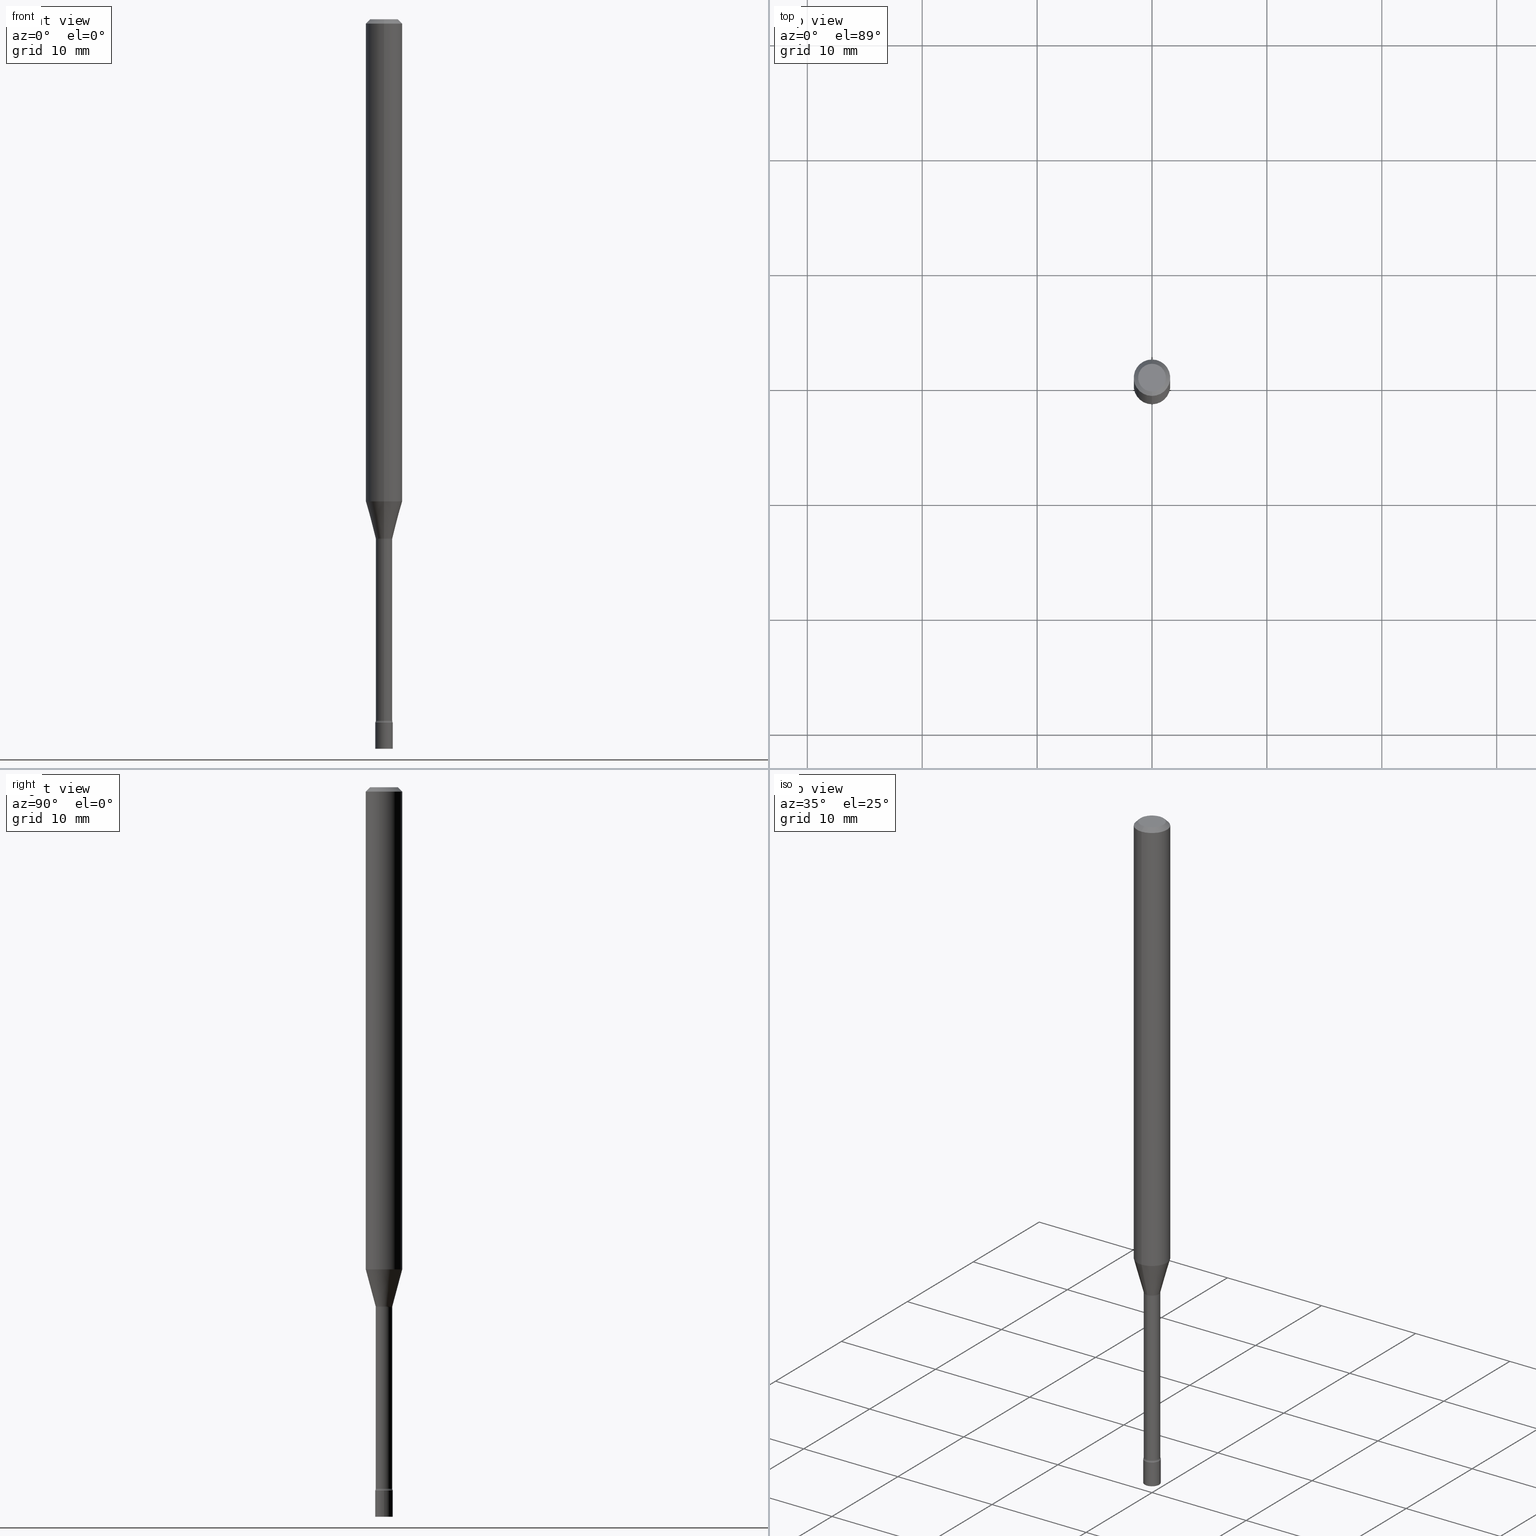
[diagram: canonical four-view strip — front | top / right | iso, engineering-drawing reading convention]
A machine part, canonical four-view strip (front | top / right | iso — engineering-drawing reading convention). The complete STEP part file that produces these views, byte-faithful:
ISO-10303-21;
HEADER;
FILE_DESCRIPTION (( 'STEP AP203' ),
    '1' );
FILE_NAME ('09679.STEP',
    '2024-03-09T00:43:48',
    ( '' ),
    ( '' ),
    'SwSTEP 2.0',
    'SolidWorks 2023',
    '' );
FILE_SCHEMA (( 'CONFIG_CONTROL_DESIGN' ));
ENDSEC;

DATA;
#1 = FACE_OUTER_BOUND ( 'NONE', #424, .T. ) ;
#2 = ORIENTED_EDGE ( 'NONE', *, *, #239, .T. ) ;
#3 = APPLICATION_CONTEXT ( 'configuration controlled 3d designs of mechanical parts and assemblies' ) ;
#4 = CARTESIAN_POINT ( 'NONE',  ( 4.357819867251612276E-29, -6.221651362429354140E-15, -1.781974787463811216 ) ) ;
#5 = CARTESIAN_POINT ( 'NONE',  ( 4.440892098501027495E-16, 0.06249999999999421296, -1.651990657300388188 ) ) ;
#6 = VERTEX_POINT ( 'NONE', #228 ) ;
#7 = CARTESIAN_POINT ( 'NONE',  ( 3.668250441512030208E-31, -5.237154369016894363E-17, -0.01500000000000003067 ) ) ;
#8 = VECTOR ( 'NONE', #170, 39.37007874015748854 ) ;
#9 = APPROVAL_PERSON_ORGANIZATION ( #303, #55, #172 ) ;
#10 = ADVANCED_FACE ( 'NONE', ( #381 ), #83, .T. ) ;
#11 = EDGE_LOOP ( 'NONE', ( #56, #251, #222, #380 ) ) ;
#12 = DIRECTION ( 'NONE',  ( 1.000000000000000000, -7.105427357601001070E-15, 4.926314956314159995E-29 ) ) ;
#13 = ORIENTED_EDGE ( 'NONE', *, *, #44, .T. ) ;
#14 = DIRECTION ( 'NONE',  ( -2.445500294341348638E-29, 3.491436246011255464E-15, 1.000000000000000000 ) ) ;
#15 = ORIENTED_EDGE ( 'NONE', *, *, #446, .T. ) ;
#16 = CARTESIAN_POINT ( 'NONE',  ( 0.000000000000000000, 0.000000000000000000, 0.000000000000000000 ) ) ;
#17 = ORIENTED_EDGE ( 'NONE', *, *, #211, .F. ) ;
#18 = CIRCLE ( 'NONE', #420, 0.01499999999999997689 ) ;
#19 = CIRCLE ( 'NONE', #288, 0.02819999999999999590 ) ;
#20 = CARTESIAN_POINT ( 'NONE',  ( 0.000000000000000000, 0.000000000000000000, 0.000000000000000000 ) ) ;
#21 = EDGE_CURVE ( 'NONE', #6, #449, #18, .T. ) ;
#22 = ORIENTED_EDGE ( 'NONE', *, *, #396, .F. ) ;
#23 = CARTESIAN_POINT ( 'NONE',  ( 4.348325736486921487E-29, -6.208096609500918334E-15, -1.778092501787273294 ) ) ;
#24 =( CONVERSION_BASED_UNIT ( 'INCH', #31 ) LENGTH_UNIT ( ) NAMED_UNIT ( #116 ) );
#25 = EDGE_LOOP ( 'NONE', ( #185, #451 ) ) ;
#26 = CIRCLE ( 'NONE', #399, 0.02999999999999999889 ) ;
#27 = AXIS2_PLACEMENT_3D ( 'NONE', #443, #110, #324 ) ;
#28 = EDGE_CURVE ( 'NONE', #334, #418, #257, .T. ) ;
#29 = DATE_TIME_ROLE ( 'creation_date' ) ;
#30 = CARTESIAN_POINT ( 'NONE',  ( 3.069544618484225597E-16, 0.04319999999999168255, -2.402875394747777893 ) ) ;
#31 = LENGTH_MEASURE_WITH_UNIT ( LENGTH_MEASURE( 0.02539999999999999897 ), #272 );
#32 = CARTESIAN_POINT ( 'NONE',  ( 4.364351673553919652E-16, 0.06249999999999995143, -0.01500000000000024751 ) ) ;
#33 = DATE_AND_TIME ( #388, #247 ) ;
#34 = PLANE ( 'NONE',  #206 ) ;
#35 = ADVANCED_FACE ( 'NONE', ( #397 ), #167, .F. ) ;
#36 = AXIS2_PLACEMENT_3D ( 'NONE', #23, #194, #157 ) ;
#37 = LOCAL_TIME ( 19, 43, 48.00000000000000000, #244 ) ;
#38 = DIRECTION ( 'NONE',  ( 2.445500294341348638E-29, -3.491436246011255464E-15, -1.000000000000000000 ) ) ;
#39 = CARTESIAN_POINT ( 'NONE',  ( -0.02999999999999999889, -8.358423866131893065E-15, -2.500000000000000000 ) ) ;
#40 = CC_DESIGN_DATE_AND_TIME_ASSIGNMENT ( #161, #29, ( #99 ) ) ;
#41 = CARTESIAN_POINT ( 'NONE',  ( 2.094888803306469144E-16, 0.02999999999999158548, -2.410000000000000142 ) ) ;
#42 = CARTESIAN_POINT ( 'NONE',  ( 0.000000000000000000, 0.000000000000000000, 0.000000000000000000 ) ) ;
#43 = DIRECTION ( 'NONE',  ( -2.445500294341348638E-29, 3.491436246011255464E-15, 1.000000000000000000 ) ) ;
#44 = EDGE_CURVE ( 'NONE', #111, #492, #131, .T. ) ;
#45 = CIRCLE ( 'NONE', #72, 0.02871111260566398468 ) ;
#46 = DIRECTION ( 'NONE',  ( -6.982962677686262766E-15, -1.000000000000000000, 0.000000000000000000 ) ) ;
#47 = DIRECTION ( 'NONE',  ( -2.445468806185136597E-29, 3.491481338843145583E-15, 1.000000000000000000 ) ) ;
#48 = DIRECTION ( 'NONE',  ( 2.445500294341348357E-29, -3.491436246011255464E-15, -1.000000000000000000 ) ) ;
#49 = APPLICATION_CONTEXT ( 'configuration controlled 3d designs of mechanical parts and assemblies' ) ;
#50 = DIRECTION ( 'NONE',  ( 1.000000000000000000, -6.982962677686267499E-15, 4.876176775795936353E-29 ) ) ;
#51 = ORIENTED_EDGE ( 'NONE', *, *, #345, .T. ) ;
#52 = ORIENTED_EDGE ( 'NONE', *, *, #428, .F. ) ;
#53 = AXIS2_PLACEMENT_3D ( 'NONE', #126, #352, #427 ) ;
#54 = AXIS2_PLACEMENT_3D ( 'NONE', #42, #398, #75 ) ;
#55 = APPROVAL ( #463, 'UNSPECIFIED' ) ;
#56 = ORIENTED_EDGE ( 'NONE', *, *, #44, .F. ) ;
#57 = PLANE ( 'NONE',  #426 ) ;
#58 = ORIENTED_EDGE ( 'NONE', *, *, #446, .F. ) ;
#59 = CARTESIAN_POINT ( 'NONE',  ( 0.000000000000000000, 0.000000000000000000, 0.000000000000000000 ) ) ;
#60 = EDGE_LOOP ( 'NONE', ( #366, #262 ) ) ;
#61 = ADVANCED_FACE ( 'NONE', ( #204 ), #304, .F. ) ;
#62 = CYLINDRICAL_SURFACE ( 'NONE', #378, 0.02999999999999999889 ) ;
#63 = CONICAL_SURFACE ( 'NONE', #231, 0.02871111260566398468, 0.2617993877991500740 ) ;
#64 = AXIS2_PLACEMENT_3D ( 'NONE', #114, #468, #383 ) ;
#65 = DIRECTION ( 'NONE',  ( -2.445500294341348638E-29, 3.491436246011255464E-15, 1.000000000000000000 ) ) ;
#66 = CC_DESIGN_DATE_AND_TIME_ASSIGNMENT ( #125, #155, ( #305 ) ) ;
#67 = EDGE_LOOP ( 'NONE', ( #287, #331, #109, #115 ) ) ;
#68 = ORIENTED_EDGE ( 'NONE', *, *, #428, .T. ) ;
#69 = COORDINATED_UNIVERSAL_TIME_OFFSET ( 5, 0, .BEHIND. ) ;
#70 = EDGE_CURVE ( 'NONE', #469, #492, #266, .T. ) ;
#71 = EDGE_LOOP ( 'NONE', ( #504, #97, #362, #500 ) ) ;
#72 = AXIS2_PLACEMENT_3D ( 'NONE', #238, #354, #387 ) ;
#73 = VECTOR ( 'NONE', #171, 39.37007874015748143 ) ;
#74 = DIRECTION ( 'NONE',  ( 1.000000000000000000, -6.982962677686268288E-15, 0.000000000000000000 ) ) ;
#75 = DIRECTION ( 'NONE',  ( -6.982962677686265922E-15, -1.000000000000000000, 3.491436246011255464E-15 ) ) ;
#76 =( NAMED_UNIT ( * ) PLANE_ANGLE_UNIT ( ) SI_UNIT ( $, .RADIAN. ) );
#77 = CARTESIAN_POINT ( 'NONE',  ( 4.357819867251612276E-29, -6.221651362429354140E-15, -1.781974787463811216 ) ) ;
#78 = MANIFOLD_SOLID_BREP ( 'Body-Move/Copy2[1]', #112 ) ;
#79 = PERSON_AND_ORGANIZATION_ROLE ( 'creator' ) ;
#80 = EDGE_CURVE ( 'NONE', #466, #140, #351, .T. ) ;
#81 = DIRECTION ( 'NONE',  ( -6.982962677686265922E-15, -1.000000000000000000, 3.483106191921935554E-15 ) ) ;
#82 = AXIS2_PLACEMENT_3D ( 'NONE', #437, #430, #393 ) ;
#83 = CONICAL_SURFACE ( 'NONE', #36, 0.02871111260566398468, 0.2617993877991500740 ) ;
#84 = DATE_AND_TIME ( #402, #37 ) ;
#85 = CC_DESIGN_APPROVAL ( #55, ( #305 ) ) ;
#86 = LINE ( 'NONE', #32, #279 ) ;
#87 = SHAPE_DEFINITION_REPRESENTATION ( #391, #133 ) ;
#88 = DIRECTION ( 'NONE',  ( -2.445468806185136597E-29, 3.491481338843145583E-15, 1.000000000000000000 ) ) ;
#89 = EDGE_CURVE ( 'NONE', #342, #413, #392, .T. ) ;
#90 = CARTESIAN_POINT ( 'NONE',  ( -4.287811248607203282E-16, -0.06250000000000005551, -0.01499999999999981209 ) ) ;
#91 = EDGE_CURVE ( 'NONE', #229, #405, #45, .T. ) ;
#92 = AXIS2_PLACEMENT_3D ( 'NONE', #177, #226, #94 ) ;
#93 = DIRECTION ( 'NONE',  ( -6.982962677686265922E-15, -1.000000000000000000, 3.491436246011255464E-15 ) ) ;
#94 = DIRECTION ( 'NONE',  ( -6.982962677686265922E-15, -1.000000000000000000, 0.000000000000000000 ) ) ;
#95 = EDGE_LOOP ( 'NONE', ( #51, #299, #407, #175 ) ) ;
#96 = CARTESIAN_POINT ( 'NONE',  ( 3.069544618484067825E-16, 0.04319999999999377810, -1.781974787463811438 ) ) ;
#97 = ORIENTED_EDGE ( 'NONE', *, *, #307, .T. ) ;
#98 = DIRECTION ( 'NONE',  ( -6.982962677686265133E-15, -1.000000000000000000, 0.000000000000000000 ) ) ;
#99 = PRODUCT_DEFINITION ( 'UNKNOWN', '', #394, #160 ) ;
#100 = ORIENTED_EDGE ( 'NONE', *, *, #255, .F. ) ;
#101 = FACE_OUTER_BOUND ( 'NONE', #464, .T. ) ;
#102 = AXIS2_PLACEMENT_3D ( 'NONE', #330, #370, #173 ) ;
#103 = AXIS2_PLACEMENT_3D ( 'NONE', #20, #191, #301 ) ;
#104 = EDGE_LOOP ( 'NONE', ( #232, #144, #373, #329 ) ) ;
#105 = CYLINDRICAL_SURFACE ( 'NONE', #484, 0.02999999999999999889 ) ;
#106 = EDGE_CURVE ( 'NONE', #455, #449, #180, .T. ) ;
#107 = ORIENTED_EDGE ( 'NONE', *, *, #264, .F. ) ;
#108 = LINE ( 'NONE', #90, #401 ) ;
#109 = ORIENTED_EDGE ( 'NONE', *, *, #255, .T. ) ;
#110 = DIRECTION ( 'NONE',  ( -1.000000000000000000, 6.982962677686265922E-15, -4.883557194083112340E-29 ) ) ;
#111 = VERTEX_POINT ( 'NONE', #39 ) ;
#112 = CLOSED_SHELL ( 'NONE', ( #436, #343, #389, #178 ) ) ;
#113 = AXIS2_PLACEMENT_3D ( 'NONE', #284, #441, #93 ) ;
#114 = CARTESIAN_POINT ( 'NONE',  ( 0.000000000000000000, 0.000000000000000000, 0.000000000000000000 ) ) ;
#115 = ORIENTED_EDGE ( 'NONE', *, *, #106, .T. ) ;
#116 = DIMENSIONAL_EXPONENTS ( 1.000000000000000000, 0.000000000000000000, 0.000000000000000000, 0.000000000000000000, 0.000000000000000000, 0.000000000000000000, 0.000000000000000000 ) ;
#117 = SECURITY_CLASSIFICATION_LEVEL ( 'unclassified' ) ;
#118 = EDGE_LOOP ( 'NONE', ( #296, #2, #335, #260 ) ) ;
#119 = FACE_OUTER_BOUND ( 'NONE', #153, .T. ) ;
#120 = VECTOR ( 'NONE', #517, 39.37007874015748143 ) ;
#121 = CIRCLE ( 'NONE', #207, 0.02999999999999999889 ) ;
#122 = DIRECTION ( 'NONE',  ( -2.445500294341348918E-29, 3.491436246011255464E-15, 1.000000000000000000 ) ) ;
#123 = CARTESIAN_POINT ( 'NONE',  ( 6.113672015462842613E-29, -8.728703347107864943E-15, -2.500000000000000000 ) ) ;
#124 = EDGE_CURVE ( 'NONE', #405, #466, #168, .T. ) ;
#125 = DATE_AND_TIME ( #465, #353 ) ;
#126 = CARTESIAN_POINT ( 'NONE',  ( 5.876232485121274110E-29, -8.389486247870995821E-15, -2.402875394747777893 ) ) ;
#127 = UNCERTAINTY_MEASURE_WITH_UNIT (LENGTH_MEASURE( 1.000000000000000082E-05 ), #24, 'distance_accuracy_value', 'NONE');
#128 = DIRECTION ( 'NONE',  ( 1.000000000000000000, -6.982962677686268288E-15, 0.000000000000000000 ) ) ;
#129 = AXIS2_PLACEMENT_3D ( 'NONE', #474, #356, #314 ) ;
#130 = VECTOR ( 'NONE', #326, 39.37007874015748143 ) ;
#131 = LINE ( 'NONE', #205, #120 ) ;
#132 = ADVANCED_FACE ( 'NONE', ( #471 ), #156, .T. ) ;
#133 = ADVANCED_BREP_SHAPE_REPRESENTATION ( '09679', ( #78, #419, #64 ), #453 ) ;
#134 = FACE_OUTER_BOUND ( 'NONE', #25, .T. ) ;
#135 = CARTESIAN_POINT ( 'NONE',  ( -2.094888803305289058E-16, -0.03000000000000839495, -2.410000000000000142 ) ) ;
#136 = CARTESIAN_POINT ( 'NONE',  ( 3.668250441512030208E-31, -5.237154369016894363E-17, -0.01500000000000003067 ) ) ;
#137 = DIRECTION ( 'NONE',  ( -2.445500294341348638E-29, 3.491436246011255464E-15, 1.000000000000000000 ) ) ;
#138 = CARTESIAN_POINT ( 'NONE',  ( 2.003730514843485684E-16, 0.02820000000000004794, -9.845850213751757581E-17 ) ) ;
#139 = EDGE_CURVE ( 'NONE', #111, #481, #510, .T. ) ;
#140 = VERTEX_POINT ( 'NONE', #276 ) ;
#141 = CONICAL_SURFACE ( 'NONE', #315, 0.06250000000000000000, 0.7853981633974483900 ) ;
#142 = PLANE ( 'NONE',  #225 ) ;
#143 = DIRECTION ( 'NONE',  ( -2.445468806185136597E-29, 3.491481338843145583E-15, 1.000000000000000000 ) ) ;
#144 = ORIENTED_EDGE ( 'NONE', *, *, #89, .F. ) ;
#145 = DIRECTION ( 'NONE',  ( -2.445500294341348638E-29, 3.491436246011255464E-15, 1.000000000000000000 ) ) ;
#146 = EDGE_LOOP ( 'NONE', ( #294, #68, #384, #58 ) ) ;
#147 = ORIENTED_EDGE ( 'NONE', *, *, #271, .T. ) ;
#148 = AXIS2_PLACEMENT_3D ( 'NONE', #252, #214, #360 ) ;
#149 = ORIENTED_EDGE ( 'NONE', *, *, #106, .F. ) ;
#150 = CARTESIAN_POINT ( 'NONE',  ( 0.000000000000000000, 0.000000000000000000, 0.000000000000000000 ) ) ;
#151 = VERTEX_POINT ( 'NONE', #513 ) ;
#152 = FACE_OUTER_BOUND ( 'NONE', #186, .T. ) ;
#153 = EDGE_LOOP ( 'NONE', ( #256, #454 ) ) ;
#154 = EDGE_CURVE ( 'NONE', #302, #291, #377, .T. ) ;
#155 = DATE_TIME_ROLE ( 'classification_date' ) ;
#156 = CONICAL_SURFACE ( 'NONE', #358, 0.06250000000000000000, 0.7853981633974483900 ) ;
#157 = DIRECTION ( 'NONE',  ( -6.982962677686265133E-15, -1.000000000000000000, 0.000000000000000000 ) ) ;
#158 = AXIS2_PLACEMENT_3D ( 'NONE', #406, #145, #293 ) ;
#159 = PERSON_AND_ORGANIZATION ( #310, #233 ) ;
#160 = DESIGN_CONTEXT ( 'detailed design', #3, 'design' ) ;
#161 = DATE_AND_TIME ( #235, #461 ) ;
#162 = CARTESIAN_POINT ( 'NONE',  ( 3.668250441512030208E-31, -5.237154369016894363E-17, -0.01500000000000003067 ) ) ;
#163 = EDGE_CURVE ( 'NONE', #342, #334, #86, .T. ) ;
#164 = CIRCLE ( 'NONE', #53, 0.02820000000000009999 ) ;
#165 = AXIS2_PLACEMENT_3D ( 'NONE', #456, #417, #379 ) ;
#166 = APPROVAL_STATUS ( 'not_yet_approved' ) ;
#167 = PLANE ( 'NONE',  #246 ) ;
#168 = LINE ( 'NONE', #169, #8 ) ;
#169 = CARTESIAN_POINT ( 'NONE',  ( 2.040047249754913233E-16, 0.02871111260565777784, -1.778092501787273294 ) ) ;
#170 = DIRECTION ( 'NONE',  ( 1.839019923739598738E-15, 0.2588190451025247363, 0.9659258262890673130 ) ) ;
#171 = DIRECTION ( 'NONE',  ( -2.445500294341348918E-29, 3.491436246011255464E-15, 1.000000000000000000 ) ) ;
#172 = APPROVAL_ROLE ( '' ) ;
#173 = DIRECTION ( 'NONE',  ( -6.982962677686266711E-15, -1.000000000000000000, 3.491436246011255464E-15 ) ) ;
#174 = CARTESIAN_POINT ( 'NONE',  ( -4.364351673553912750E-16, -0.06250000000000005551, -0.01499999999999981209 ) ) ;
#175 = ORIENTED_EDGE ( 'NONE', *, *, #520, .F. ) ;
#176 = DIRECTION ( 'NONE',  ( 7.105427357601001859E-15, 1.000000000000000000, 0.000000000000000000 ) ) ;
#177 = CARTESIAN_POINT ( 'NONE',  ( 5.876232485121274110E-29, -8.389486247870995821E-15, -2.402875394747777893 ) ) ;
#178 = ADVANCED_FACE ( 'NONE', ( #119 ), #34, .T. ) ;
#179 = ORIENTED_EDGE ( 'NONE', *, *, #163, .F. ) ;
#180 = CIRCLE ( 'NONE', #460, 0.02999999999999999889 ) ;
#181 = CIRCLE ( 'NONE', #158, 0.06250000000000000000 ) ;
#182 = CARTESIAN_POINT ( 'NONE',  ( 3.316907271900976096E-16, 0.04749999999999999362, -1.803012481042265198E-16 ) ) ;
#183 = ORIENTED_EDGE ( 'NONE', *, *, #364, .F. ) ;
#184 = CARTESIAN_POINT ( 'NONE',  ( 7.071421572501205018E-46, -1.009585549680183845E-31, -2.891605283738379044E-17 ) ) ;
#185 = ORIENTED_EDGE ( 'NONE', *, *, #70, .T. ) ;
#186 = EDGE_LOOP ( 'NONE', ( #52, #215, #15, #368 ) ) ;
#187 = FACE_OUTER_BOUND ( 'NONE', #95, .T. ) ;
#188 = CARTESIAN_POINT ( 'NONE',  ( 0.02999999999999999889, -8.623958906942569995E-15, -2.410000000000000142 ) ) ;
#189 = CIRCLE ( 'NONE', #442, 0.01499999999999997689 ) ;
#190 = ORIENTED_EDGE ( 'NONE', *, *, #21, .T. ) ;
#191 = DIRECTION ( 'NONE',  ( -2.445500294341348638E-29, 3.491436246011255464E-15, 1.000000000000000000 ) ) ;
#192 = EDGE_CURVE ( 'NONE', #151, #6, #164, .T. ) ;
#193 =( NAMED_UNIT ( * ) SI_UNIT ( $, .STERADIAN. ) SOLID_ANGLE_UNIT ( ) );
#194 = DIRECTION ( 'NONE',  ( -2.445500294341348638E-29, 3.491436246011255464E-15, 1.000000000000000000 ) ) ;
#195 = ORIENTED_EDGE ( 'NONE', *, *, #292, .T. ) ;
#196 = DIRECTION ( 'NONE',  ( 7.105427357600997914E-15, 1.000000000000000000, 0.000000000000000000 ) ) ;
#197 = PERSON_AND_ORGANIZATION_ROLE ( 'design_owner' ) ;
#198 = EDGE_CURVE ( 'NONE', #492, #469, #408, .T. ) ;
#199 = DIRECTION ( 'NONE',  ( -6.982962677686265922E-15, -1.000000000000000000, 3.491436246011255464E-15 ) ) ;
#200 = COORDINATED_UNIVERSAL_TIME_OFFSET ( 5, 0, .BEHIND. ) ;
#201 = DIRECTION ( 'NONE',  ( -1.000000000000000000, 6.982962677686265922E-15, -4.876176775795935793E-29 ) ) ;
#202 = CC_DESIGN_APPROVAL ( #423, ( #99 ) ) ;
#203 = DIRECTION ( 'NONE',  ( 1.000000000000000000, -6.982962677686236734E-15, 0.000000000000000000 ) ) ;
#204 = FACE_OUTER_BOUND ( 'NONE', #486, .T. ) ;
#205 = CARTESIAN_POINT ( 'NONE',  ( -0.02999999999999999889, 2.131628207280300479E-16, -1.475680527076471707E-30 ) ) ;
#206 = AXIS2_PLACEMENT_3D ( 'NONE', #357, #242, #201 ) ;
#207 = AXIS2_PLACEMENT_3D ( 'NONE', #290, #414, #440 ) ;
#208 = FACE_OUTER_BOUND ( 'NONE', #261, .T. ) ;
#209 = CARTESIAN_POINT ( 'NONE',  ( -3.773273898774340269E-16, -0.04749999999999999362, 1.369271688481508433E-16 ) ) ;
#210 = CARTESIAN_POINT ( 'NONE',  ( 4.348325736486921487E-29, -6.208096609500918334E-15, -1.778092501787273294 ) ) ;
#211 = EDGE_CURVE ( 'NONE', #449, #455, #26, .T. ) ;
#212 = FACE_OUTER_BOUND ( 'NONE', #253, .T. ) ;
#213 = ORIENTED_EDGE ( 'NONE', *, *, #124, .T. ) ;
#214 = DIRECTION ( 'NONE',  ( -2.445500294341348638E-29, 3.491436246011255464E-15, 1.000000000000000000 ) ) ;
#215 = ORIENTED_EDGE ( 'NONE', *, *, #364, .T. ) ;
#216 = TOROIDAL_SURFACE ( 'NONE', #102, 0.04320000000000007861, 0.01499999999999997516 ) ;
#217 = AXIS2_PLACEMENT_3D ( 'NONE', #7, #333, #325 ) ;
#218 = ORIENTED_EDGE ( 'NONE', *, *, #70, .F. ) ;
#219 = CARTESIAN_POINT ( 'NONE',  ( 4.440892098501032425E-16, 0.06249999999999995143, -0.01500000000000024751 ) ) ;
#220 = ORIENTED_EDGE ( 'NONE', *, *, #28, .F. ) ;
#221 = CARTESIAN_POINT ( 'NONE',  ( -1.969195475107530228E-16, -0.02820000000000004794, 9.845850213751757581E-17 ) ) ;
#222 = ORIENTED_EDGE ( 'NONE', *, *, #396, .T. ) ;
#223 = CARTESIAN_POINT ( 'NONE',  ( -2.004886277601557809E-16, -0.02871111260567019152, -1.778092501787273294 ) ) ;
#224 = CIRCLE ( 'NONE', #515, 0.04749999999999999362 ) ;
#225 = AXIS2_PLACEMENT_3D ( 'NONE', #281, #439, #447 ) ;
#226 = DIRECTION ( 'NONE',  ( -2.445500294341348638E-29, 3.491436246011255464E-15, 1.000000000000000000 ) ) ;
#227 = CC_DESIGN_PERSON_AND_ORGANIZATION_ASSIGNMENT ( #309, #197, ( #499 ) ) ;
#228 = CARTESIAN_POINT ( 'NONE',  ( 2.067679361062482755E-16, 0.02819999999999171086, -2.402875394747777893 ) ) ;
#229 = VERTEX_POINT ( 'NONE', #395 ) ;
#230 = PERSON_AND_ORGANIZATION ( #310, #233 ) ;
#231 = AXIS2_PLACEMENT_3D ( 'NONE', #210, #137, #98 ) ;
#232 = ORIENTED_EDGE ( 'NONE', *, *, #416, .F. ) ;
#233 = ORGANIZATION ( 'UNSPECIFIED', 'UNSPECIFIED', '' ) ;
#234 = ADVANCED_FACE ( 'NONE', ( #491 ), #216, .F. ) ;
#235 = CALENDAR_DATE ( 2024, 8, 3 ) ;
#236 = CARTESIAN_POINT ( 'NONE',  ( 5.893655709362650640E-29, -8.414361352887126267E-15, -2.410000000000000142 ) ) ;
#237 = COORDINATED_UNIVERSAL_TIME_OFFSET ( 5, 0, .BEHIND. ) ;
#238 = CARTESIAN_POINT ( 'NONE',  ( 4.348325736486921487E-29, -6.208096609500918334E-15, -1.778092501787273294 ) ) ;
#239 = EDGE_CURVE ( 'NONE', #405, #302, #493, .T. ) ;
#240 = AXIS2_PLACEMENT_3D ( 'NONE', #16, #65, #483 ) ;
#241 = APPROVAL_DATE_TIME ( #84, #55 ) ;
#242 = DIRECTION ( 'NONE',  ( 2.438088387897960049E-29, -3.491481338843145188E-15, -1.000000000000000000 ) ) ;
#243 = CARTESIAN_POINT ( 'NONE',  ( 4.039943638677256498E-29, -5.767820058970533268E-15, -1.651990657300387966 ) ) ;
#244 = COORDINATED_UNIVERSAL_TIME_OFFSET ( 5, 0, .BEHIND. ) ;
#245 = DIRECTION ( 'NONE',  ( -4.851104656540964275E-15, -0.7071067811865500152, -0.7071067811865450192 ) ) ;
#246 = AXIS2_PLACEMENT_3D ( 'NONE', #41, #476, #199 ) ;
#247 = LOCAL_TIME ( 19, 43, 48.00000000000000000, #237 ) ;
#248 = ADVANCED_FACE ( 'NONE', ( #208 ), #63, .T. ) ;
#249 = FACE_OUTER_BOUND ( 'NONE', #60, .T. ) ;
#250 = LINE ( 'NONE', #448, #494 ) ;
#251 = ORIENTED_EDGE ( 'NONE', *, *, #139, .T. ) ;
#252 = CARTESIAN_POINT ( 'NONE',  ( 4.357763756151139053E-29, -6.221731716718877342E-15, -1.781974787463811216 ) ) ;
#253 = EDGE_LOOP ( 'NONE', ( #269, #13, #218, #22 ) ) ;
#254 = CARTESIAN_POINT ( 'NONE',  ( 4.348325736486921487E-29, -6.208096609500918334E-15, -1.778092501787273294 ) ) ;
#255 = EDGE_CURVE ( 'NONE', #151, #455, #189, .T. ) ;
#256 = ORIENTED_EDGE ( 'NONE', *, *, #374, .F. ) ;
#257 = CIRCLE ( 'NONE', #313, 0.06250000000000000000 ) ;
#258 = CIRCLE ( 'NONE', #27, 0.01500000000000001853 ) ;
#259 = CC_DESIGN_PERSON_AND_ORGANIZATION_ASSIGNMENT ( #159, #79, ( #394 ) ) ;
#260 = ORIENTED_EDGE ( 'NONE', *, *, #473, .F. ) ;
#261 = EDGE_LOOP ( 'NONE', ( #489, #213, #445, #327 ) ) ;
#262 = ORIENTED_EDGE ( 'NONE', *, *, #264, .T. ) ;
#263 = LINE ( 'NONE', #138, #347 ) ;
#264 = EDGE_CURVE ( 'NONE', #413, #342, #224, .T. ) ;
#265 = LINE ( 'NONE', #421, #274 ) ;
#266 = CIRCLE ( 'NONE', #336, 0.02999999999999999889 ) ;
#267 = APPROVAL_PERSON_ORGANIZATION ( #386, #438, #429 ) ;
#268 = COORDINATED_UNIVERSAL_TIME_OFFSET ( 5, 0, .BEHIND. ) ;
#269 = ORIENTED_EDGE ( 'NONE', *, *, #374, .T. ) ;
#270 = CALENDAR_DATE ( 2024, 8, 3 ) ;
#271 = EDGE_CURVE ( 'NONE', #291, #302, #19, .T. ) ;
#272 =( LENGTH_UNIT ( ) NAMED_UNIT ( * ) SI_UNIT ( $, .METRE. ) );
#273 = DIRECTION ( 'NONE',  ( -6.982962677686265922E-15, -1.000000000000000000, 0.000000000000000000 ) ) ;
#274 = VECTOR ( 'NONE', #122, 39.37007874015748143 ) ;
#275 = PERSON_AND_ORGANIZATION_ROLE ( 'creator' ) ;
#276 = CARTESIAN_POINT ( 'NONE',  ( -4.364351673553514375E-16, -0.06250000000000580092, -1.651990657300387744 ) ) ;
#277 = DIRECTION ( 'NONE',  ( -2.445500294341348638E-29, 3.491436246011255464E-15, 1.000000000000000000 ) ) ;
#278 = DIRECTION ( 'NONE',  ( 6.982962677686265922E-15, 1.000000000000000000, -3.483106191921935554E-15 ) ) ;
#279 = VECTOR ( 'NONE', #390, 39.37007874015748143 ) ;
#280 = DIRECTION ( 'NONE',  ( -2.445500294341348638E-29, 3.491436246011255464E-15, 1.000000000000000000 ) ) ;
#281 = CARTESIAN_POINT ( 'NONE',  ( 5.893579822906179826E-29, -8.414470026611981678E-15, -2.410000000000000142 ) ) ;
#282 = FACE_OUTER_BOUND ( 'NONE', #118, .T. ) ;
#283 = ADVANCED_FACE ( 'NONE', ( #101 ), #337, .F. ) ;
#284 = CARTESIAN_POINT ( 'NONE',  ( 0.000000000000000000, 0.000000000000000000, 0.000000000000000000 ) ) ;
#285 = CARTESIAN_POINT ( 'NONE',  ( 2.131628207280888673E-16, 0.02999999999999156813, -2.410000000000000142 ) ) ;
#286 = AXIS2_PLACEMENT_3D ( 'NONE', #511, #317, #74 ) ;
#287 = ORIENTED_EDGE ( 'NONE', *, *, #21, .F. ) ;
#288 = AXIS2_PLACEMENT_3D ( 'NONE', #4, #289, #519 ) ;
#289 = DIRECTION ( 'NONE',  ( -2.445500294341348638E-29, 3.491436246011255464E-15, 1.000000000000000000 ) ) ;
#290 = CARTESIAN_POINT ( 'NONE',  ( 6.113672015462842613E-29, -8.728703347107864943E-15, -2.500000000000000000 ) ) ;
#291 = VERTEX_POINT ( 'NONE', #403 ) ;
#292 = EDGE_CURVE ( 'NONE', #418, #334, #434, .T. ) ;
#293 = DIRECTION ( 'NONE',  ( -6.982962677686265922E-15, -1.000000000000000000, 4.370956789862821150E-15 ) ) ;
#294 = ORIENTED_EDGE ( 'NONE', *, *, #192, .T. ) ;
#295 = CC_DESIGN_PERSON_AND_ORGANIZATION_ASSIGNMENT ( #385, #275, ( #99 ) ) ;
#296 = ORIENTED_EDGE ( 'NONE', *, *, #307, .F. ) ;
#297 = AXIS2_PLACEMENT_3D ( 'NONE', #243, #509, #432 ) ;
#298 = LOCAL_TIME ( 19, 43, 48.00000000000000000, #268 ) ;
#299 = ORIENTED_EDGE ( 'NONE', *, *, #457, .T. ) ;
#300 = CYLINDRICAL_SURFACE ( 'NONE', #103, 0.02820000000000004794 ) ;
#301 = DIRECTION ( 'NONE',  ( -6.982962677686265922E-15, -1.000000000000000000, 3.491436246011255464E-15 ) ) ;
#302 = VERTEX_POINT ( 'NONE', #363 ) ;
#303 = PERSON_AND_ORGANIZATION ( #310, #233 ) ;
#304 = TOROIDAL_SURFACE ( 'NONE', #82, 0.04320000000000007861, 0.01499999999999997516 ) ;
#305 = SECURITY_CLASSIFICATION ( '', '', #117 ) ;
#306 = PERSON_AND_ORGANIZATION_ROLE ( 'design_supplier' ) ;
#307 = EDGE_CURVE ( 'NONE', #405, #229, #409, .T. ) ;
#308 = ORIENTED_EDGE ( 'NONE', *, *, #211, .T. ) ;
#309 = PERSON_AND_ORGANIZATION ( #310, #233 ) ;
#310 = PERSON ( 'UNSPECIFIED', 'UNSPECIFIED', 'UNSPECIFIED', ('UNSPECIFIED'), ('UNSPECIFIED'), ('UNSPECIFIED') ) ;
#311 = EDGE_LOOP ( 'NONE', ( #149, #17 ) ) ;
#312 = APPROVAL_STATUS ( 'not_yet_approved' ) ;
#313 = AXIS2_PLACEMENT_3D ( 'NONE', #506, #280, #81 ) ;
#314 = DIRECTION ( 'NONE',  ( -6.982962677686266711E-15, -1.000000000000000000, 3.491436246011255858E-15 ) ) ;
#315 = AXIS2_PLACEMENT_3D ( 'NONE', #136, #38, #411 ) ;
#316 = PERSON_AND_ORGANIZATION ( #310, #233 ) ;
#317 = DIRECTION ( 'NONE',  ( -2.445468806185136597E-29, 3.491481338843145583E-15, 1.000000000000000000 ) ) ;
#318 = DIRECTION ( 'NONE',  ( -6.982962677686265922E-15, -1.000000000000000000, 0.000000000000000000 ) ) ;
#319 = DIRECTION ( 'NONE',  ( 2.445500294341348638E-29, -3.491436246011255464E-15, -1.000000000000000000 ) ) ;
#320 = CLOSED_SHELL ( 'NONE', ( #490, #323, #61, #355, #359, #248, #10, #382, #132, #339, #35, #234, #512, #283 ) ) ;
#321 = VECTOR ( 'NONE', #341, 39.37007874015748854 ) ;
#322 = CARTESIAN_POINT ( 'NONE',  ( -3.016639876759884357E-16, -0.04320000000000846774, -2.402875394747777449 ) ) ;
#323 = ADVANCED_FACE ( 'NONE', ( #412 ), #372, .T. ) ;
#324 = DIRECTION ( 'NONE',  ( -6.982962677686267499E-15, -1.000000000000000000, 0.000000000000000000 ) ) ;
#325 = DIRECTION ( 'NONE',  ( -6.982962677686265922E-15, -1.000000000000000000, 3.483106191921935554E-15 ) ) ;
#326 = DIRECTION ( 'NONE',  ( -2.445500294341348918E-29, 3.491436246011255464E-15, 1.000000000000000000 ) ) ;
#327 = ORIENTED_EDGE ( 'NONE', *, *, #485, .F. ) ;
#328 = FACE_OUTER_BOUND ( 'NONE', #11, .T. ) ;
#329 = ORIENTED_EDGE ( 'NONE', *, *, #28, .T. ) ;
#330 = CARTESIAN_POINT ( 'NONE',  ( 5.876156823005487003E-29, -8.389594600327222537E-15, -2.402875394747777893 ) ) ;
#331 = ORIENTED_EDGE ( 'NONE', *, *, #192, .F. ) ;
#332 = CC_DESIGN_PERSON_AND_ORGANIZATION_ASSIGNMENT ( #316, #498, ( #305 ) ) ;
#333 = DIRECTION ( 'NONE',  ( -2.445500294341348638E-29, 3.491436246011255464E-15, 1.000000000000000000 ) ) ;
#334 = VERTEX_POINT ( 'NONE', #219 ) ;
#335 = ORIENTED_EDGE ( 'NONE', *, *, #154, .T. ) ;
#336 = AXIS2_PLACEMENT_3D ( 'NONE', #350, #88, #128 ) ;
#337 = TOROIDAL_SURFACE ( 'NONE', #148, 0.04320000000000000229, 0.01500000000000002373 ) ;
#338 = LINE ( 'NONE', #223, #321 ) ;
#339 = ADVANCED_FACE ( 'NONE', ( #249 ), #57, .F. ) ;
#340 = ORIENTED_EDGE ( 'NONE', *, *, #80, .T. ) ;
#341 = DIRECTION ( 'NONE',  ( -1.807323732225328562E-15, -0.2588190451025179639, 0.9659258262890690894 ) ) ;
#342 = VERTEX_POINT ( 'NONE', #477 ) ;
#343 = ADVANCED_FACE ( 'NONE', ( #134 ), #142, .T. ) ;
#344 = PERSON_AND_ORGANIZATION ( #310, #233 ) ;
#345 = EDGE_CURVE ( 'NONE', #140, #466, #181, .T. ) ;
#346 = AXIS2_PLACEMENT_3D ( 'NONE', #96, #12, #176 ) ;
#347 = VECTOR ( 'NONE', #480, 39.37007874015748143 ) ;
#348 = ORIENTED_EDGE ( 'NONE', *, *, #91, .F. ) ;
#349 = APPROVAL_ROLE ( '' ) ;
#350 = CARTESIAN_POINT ( 'NONE',  ( 5.893579822906179826E-29, -8.414470026611981678E-15, -2.410000000000000142 ) ) ;
#351 = CIRCLE ( 'NONE', #297, 0.06250000000000000000 ) ;
#352 = DIRECTION ( 'NONE',  ( -2.445500294341348638E-29, 3.491436246011255464E-15, 1.000000000000000000 ) ) ;
#353 = LOCAL_TIME ( 19, 43, 48.00000000000000000, #200 ) ;
#354 = DIRECTION ( 'NONE',  ( -2.445500294341348638E-29, 3.491436246011255464E-15, 1.000000000000000000 ) ) ;
#355 = ADVANCED_FACE ( 'NONE', ( #450 ), #141, .T. ) ;
#356 = DIRECTION ( 'NONE',  ( -2.445500294341348638E-29, 3.491436246011255464E-15, 1.000000000000000000 ) ) ;
#357 = CARTESIAN_POINT ( 'NONE',  ( 2.094888803306491331E-16, 0.02999999999999126976, -2.500000000000000000 ) ) ;
#358 = AXIS2_PLACEMENT_3D ( 'NONE', #162, #319, #278 ) ;
#359 = ADVANCED_FACE ( 'NONE', ( #187 ), #487, .T. ) ;
#360 = DIRECTION ( 'NONE',  ( -6.982962677686266711E-15, -1.000000000000000000, 3.491436246011255069E-15 ) ) ;
#361 = LINE ( 'NONE', #221, #130 ) ;
#362 = ORIENTED_EDGE ( 'NONE', *, *, #485, .T. ) ;
#363 = CARTESIAN_POINT ( 'NONE',  ( 2.003730514844072646E-16, 0.02819999999999377518, -1.781974787463811216 ) ) ;
#364 = EDGE_CURVE ( 'NONE', #6, #151, #502, .T. ) ;
#365 = LINE ( 'NONE', #375, #73 ) ;
#366 = ORIENTED_EDGE ( 'NONE', *, *, #89, .T. ) ;
#367 = DIRECTION ( 'NONE',  ( -1.000000000000000000, 6.982962677686265922E-15, -4.883557194083112340E-29 ) ) ;
#368 = ORIENTED_EDGE ( 'NONE', *, *, #154, .F. ) ;
#369 = CC_DESIGN_SECURITY_CLASSIFICATION ( #305, ( #394 ) ) ;
#370 = DIRECTION ( 'NONE',  ( -2.445500294341348638E-29, 3.491436246011255464E-15, 1.000000000000000000 ) ) ;
#371 = ORIENTED_EDGE ( 'NONE', *, *, #520, .T. ) ;
#372 = CYLINDRICAL_SURFACE ( 'NONE', #113, 0.02820000000000004794 ) ;
#373 = ORIENTED_EDGE ( 'NONE', *, *, #163, .T. ) ;
#374 = EDGE_CURVE ( 'NONE', #481, #111, #121, .T. ) ;
#375 = CARTESIAN_POINT ( 'NONE',  ( 4.440892098500625669E-16, 0.06250000000000000000, -2.182147653757034665E-16 ) ) ;
#376 = DIRECTION ( 'NONE',  ( 1.000000000000000000, -7.105427357601001070E-15, 4.926314956314159995E-29 ) ) ;
#377 = CIRCLE ( 'NONE', #433, 0.02819999999999999590 ) ;
#378 = AXIS2_PLACEMENT_3D ( 'NONE', #150, #47, #50 ) ;
#379 = DIRECTION ( 'NONE',  ( -6.982962677686266711E-15, -1.000000000000000000, 3.491436246011255069E-15 ) ) ;
#380 = ORIENTED_EDGE ( 'NONE', *, *, #198, .F. ) ;
#381 = FACE_OUTER_BOUND ( 'NONE', #71, .T. ) ;
#382 = ADVANCED_FACE ( 'NONE', ( #1 ), #404, .T. ) ;
#383 = DIRECTION ( 'NONE',  ( 1.000000000000000000, 0.000000000000000000, 0.000000000000000000 ) ) ;
#384 = ORIENTED_EDGE ( 'NONE', *, *, #271, .F. ) ;
#385 = PERSON_AND_ORGANIZATION ( #310, #233 ) ;
#386 = PERSON_AND_ORGANIZATION ( #310, #233 ) ;
#387 = DIRECTION ( 'NONE',  ( -6.982962677686265133E-15, -1.000000000000000000, 0.000000000000000000 ) ) ;
#388 = CALENDAR_DATE ( 2024, 8, 3 ) ;
#389 = ADVANCED_FACE ( 'NONE', ( #328 ), #62, .T. ) ;
#390 = DIRECTION ( 'NONE',  ( 4.937700262164548042E-15, 0.7071067811865451302, -0.7071067811865499042 ) ) ;
#391 = PRODUCT_DEFINITION_SHAPE ( 'NONE', 'NONE',  #99 ) ;
#392 = CIRCLE ( 'NONE', #129, 0.04749999999999999362 ) ;
#393 = DIRECTION ( 'NONE',  ( -6.982962677686266711E-15, -1.000000000000000000, 3.491436246011255464E-15 ) ) ;
#394 = PRODUCT_DEFINITION_FORMATION_WITH_SPECIFIED_SOURCE ( 'ANY', '', #499, .NOT_KNOWN. ) ;
#395 = CARTESIAN_POINT ( 'NONE',  ( -2.004886277601557809E-16, -0.02871111260567019152, -1.778092501787273294 ) ) ;
#396 = EDGE_CURVE ( 'NONE', #481, #469, #250, .T. ) ;
#397 = FACE_OUTER_BOUND ( 'NONE', #311, .T. ) ;
#398 = DIRECTION ( 'NONE',  ( -2.445500294341348638E-29, 3.491436246011255464E-15, 1.000000000000000000 ) ) ;
#399 = AXIS2_PLACEMENT_3D ( 'NONE', #236, #277, #318 ) ;
#400 = DIRECTION ( 'NONE',  ( -2.445468806185136877E-29, 3.491481338843145188E-15, 1.000000000000000000 ) ) ;
#401 = VECTOR ( 'NONE', #245, 39.37007874015748143 ) ;
#402 = CALENDAR_DATE ( 2024, 8, 3 ) ;
#403 = CARTESIAN_POINT ( 'NONE',  ( -1.969195475107090931E-16, -0.02820000000000622009, -1.781974787463811216 ) ) ;
#404 = CYLINDRICAL_SURFACE ( 'NONE', #240, 0.06250000000000000000 ) ;
#405 = VERTEX_POINT ( 'NONE', #458 ) ;
#406 = CARTESIAN_POINT ( 'NONE',  ( 4.039943638677256498E-29, -5.767820058970533268E-15, -1.651990657300387966 ) ) ;
#407 = ORIENTED_EDGE ( 'NONE', *, *, #292, .F. ) ;
#408 = CIRCLE ( 'NONE', #286, 0.02999999999999999889 ) ;
#409 = CIRCLE ( 'NONE', #475, 0.02871111260566398468 ) ;
#410 = ORIENTED_EDGE ( 'NONE', *, *, #239, .F. ) ;
#411 = DIRECTION ( 'NONE',  ( 6.982962677686265922E-15, 1.000000000000000000, -3.483106191921935554E-15 ) ) ;
#412 = FACE_OUTER_BOUND ( 'NONE', #146, .T. ) ;
#413 = VERTEX_POINT ( 'NONE', #209 ) ;
#414 = DIRECTION ( 'NONE',  ( -2.445468806185136597E-29, 3.491481338843145583E-15, 1.000000000000000000 ) ) ;
#415 = ORIENTED_EDGE ( 'NONE', *, *, #457, .F. ) ;
#416 = EDGE_CURVE ( 'NONE', #413, #418, #108, .T. ) ;
#417 = DIRECTION ( 'NONE',  ( -2.445500294341348638E-29, 3.491436246011255464E-15, 1.000000000000000000 ) ) ;
#418 = VERTEX_POINT ( 'NONE', #174 ) ;
#419 = MANIFOLD_SOLID_BREP ( 'Body-Move/Copy2[2]', #320 ) ;
#420 = AXIS2_PLACEMENT_3D ( 'NONE', #30, #376, #196 ) ;
#421 = CARTESIAN_POINT ( 'NONE',  ( -4.364351673553916201E-16, -0.06250000000000000000, 2.182147653757034665E-16 ) ) ;
#422 = APPROVAL_DATE_TIME ( #33, #438 ) ;
#423 = APPROVAL ( #166, 'UNSPECIFIED' ) ;
#424 = EDGE_LOOP ( 'NONE', ( #415, #340, #371, #220 ) ) ;
#425 = APPLICATION_PROTOCOL_DEFINITION ( 'international standard', 'config_control_design', 1994, #3 ) ;
#426 = AXIS2_PLACEMENT_3D ( 'NONE', #182, #48, #488 ) ;
#427 = DIRECTION ( 'NONE',  ( -6.982962677686265922E-15, -1.000000000000000000, 0.000000000000000000 ) ) ;
#428 = EDGE_CURVE ( 'NONE', #6, #302, #263, .T. ) ;
#429 = APPROVAL_ROLE ( '' ) ;
#430 = DIRECTION ( 'NONE',  ( -2.445500294341348638E-29, 3.491436246011255464E-15, 1.000000000000000000 ) ) ;
#431 = APPLICATION_PROTOCOL_DEFINITION ( 'international standard', 'config_control_design', 1994, #49 ) ;
#432 = DIRECTION ( 'NONE',  ( -6.982962677686265922E-15, -1.000000000000000000, 4.370956789862821150E-15 ) ) ;
#433 = AXIS2_PLACEMENT_3D ( 'NONE', #77, #43, #435 ) ;
#434 = CIRCLE ( 'NONE', #217, 0.06250000000000000000 ) ;
#435 = DIRECTION ( 'NONE',  ( -6.982962677686265922E-15, -1.000000000000000000, 0.000000000000000000 ) ) ;
#436 = ADVANCED_FACE ( 'NONE', ( #212 ), #105, .T. ) ;
#437 = CARTESIAN_POINT ( 'NONE',  ( 5.876156823005487003E-29, -8.389594600327222537E-15, -2.402875394747777893 ) ) ;
#438 = APPROVAL ( #312, 'UNSPECIFIED' ) ;
#439 = DIRECTION ( 'NONE',  ( -2.438088387897960049E-29, 3.491481338843145188E-15, 1.000000000000000000 ) ) ;
#440 = DIRECTION ( 'NONE',  ( 1.000000000000000000, -6.982962677686236734E-15, 0.000000000000000000 ) ) ;
#441 = DIRECTION ( 'NONE',  ( -2.445500294341348638E-29, 3.491436246011255464E-15, 1.000000000000000000 ) ) ;
#442 = AXIS2_PLACEMENT_3D ( 'NONE', #322, #367, #46 ) ;
#443 = CARTESIAN_POINT ( 'NONE',  ( -3.016639876760031283E-16, -0.04320000000000622647, -1.781974787463810994 ) ) ;
#444 = CC_DESIGN_APPROVAL ( #438, ( #394 ) ) ;
#445 = ORIENTED_EDGE ( 'NONE', *, *, #345, .F. ) ;
#446 = EDGE_CURVE ( 'NONE', #151, #291, #361, .T. ) ;
#447 = DIRECTION ( 'NONE',  ( 1.000000000000000000, -6.982962677686265922E-15, 4.876176775795935793E-29 ) ) ;
#448 = CARTESIAN_POINT ( 'NONE',  ( 0.02999999999999999889, -2.094888803305880210E-16, 1.462853032738780878E-30 ) ) ;
#449 = VERTEX_POINT ( 'NONE', #285 ) ;
#450 = FACE_OUTER_BOUND ( 'NONE', #497, .T. ) ;
#451 = ORIENTED_EDGE ( 'NONE', *, *, #198, .T. ) ;
#452 = DIRECTION ( 'NONE',  ( -6.982962677686266711E-15, -1.000000000000000000, 3.491436246011255858E-15 ) ) ;
#453 =( GEOMETRIC_REPRESENTATION_CONTEXT ( 3 ) GLOBAL_UNCERTAINTY_ASSIGNED_CONTEXT ( ( #127 ) ) GLOBAL_UNIT_ASSIGNED_CONTEXT ( ( #24, #76, #193 ) ) REPRESENTATION_CONTEXT ( 'NONE', 'WORKASPACE' ) );
#454 = ORIENTED_EDGE ( 'NONE', *, *, #139, .F. ) ;
#455 = VERTEX_POINT ( 'NONE', #135 ) ;
#456 = CARTESIAN_POINT ( 'NONE',  ( 4.357763756151139053E-29, -6.221731716718877342E-15, -1.781974787463811216 ) ) ;
#457 = EDGE_CURVE ( 'NONE', #466, #334, #365, .T. ) ;
#458 = CARTESIAN_POINT ( 'NONE',  ( 3.240469674127972582E-16, 0.02871111260565777784, -1.778092501787273294 ) ) ;
#459 = ORIENTED_EDGE ( 'NONE', *, *, #473, .T. ) ;
#460 = AXIS2_PLACEMENT_3D ( 'NONE', #514, #467, #273 ) ;
#461 = LOCAL_TIME ( 19, 43, 48.00000000000000000, #69 ) ;
#462 = PRODUCT_RELATED_PRODUCT_CATEGORY ( 'detail', '', ( #499 ) ) ;
#463 = APPROVAL_STATUS ( 'not_yet_approved' ) ;
#464 = EDGE_LOOP ( 'NONE', ( #410, #348, #459, #147 ) ) ;
#465 = CALENDAR_DATE ( 2024, 8, 3 ) ;
#466 = VERTEX_POINT ( 'NONE', #5 ) ;
#467 = DIRECTION ( 'NONE',  ( -2.445500294341348638E-29, 3.491436246011255464E-15, 1.000000000000000000 ) ) ;
#468 = DIRECTION ( 'NONE',  ( 0.000000000000000000, 0.000000000000000000, 1.000000000000000000 ) ) ;
#469 = VERTEX_POINT ( 'NONE', #188 ) ;
#470 = TOROIDAL_SURFACE ( 'NONE', #165, 0.04320000000000000229, 0.01500000000000002373 ) ;
#471 = FACE_OUTER_BOUND ( 'NONE', #104, .T. ) ;
#472 = DIRECTION ( 'NONE',  ( -2.445468806185136597E-29, 3.491481338843145583E-15, 1.000000000000000000 ) ) ;
#473 = EDGE_CURVE ( 'NONE', #229, #291, #258, .T. ) ;
#474 = CARTESIAN_POINT ( 'NONE',  ( 7.071421572501205018E-46, -1.009585549680183845E-31, -2.891605283738379044E-17 ) ) ;
#475 = AXIS2_PLACEMENT_3D ( 'NONE', #254, #479, #482 ) ;
#476 = DIRECTION ( 'NONE',  ( -2.445500294341348357E-29, 3.491436246011255464E-15, 1.000000000000000000 ) ) ;
#477 = CARTESIAN_POINT ( 'NONE',  ( 3.840629472727447874E-16, 0.04749999999999999362, -1.947592745229183872E-16 ) ) ;
#478 = CARTESIAN_POINT ( 'NONE',  ( 0.02999999999999999889, -8.938192227438451682E-15, -2.500000000000000000 ) ) ;
#479 = DIRECTION ( 'NONE',  ( -2.445500294341348638E-29, 3.491436246011255464E-15, 1.000000000000000000 ) ) ;
#480 = DIRECTION ( 'NONE',  ( -2.445500294341348918E-29, 3.491436246011255464E-15, 1.000000000000000000 ) ) ;
#481 = VERTEX_POINT ( 'NONE', #478 ) ;
#482 = DIRECTION ( 'NONE',  ( -6.982962677686265133E-15, -1.000000000000000000, 0.000000000000000000 ) ) ;
#483 = DIRECTION ( 'NONE',  ( -6.982962677686265922E-15, -1.000000000000000000, 3.491436246011255464E-15 ) ) ;
#484 = AXIS2_PLACEMENT_3D ( 'NONE', #59, #143, #518 ) ;
#485 = EDGE_CURVE ( 'NONE', #229, #140, #338, .T. ) ;
#486 = EDGE_LOOP ( 'NONE', ( #183, #190, #308, #100 ) ) ;
#487 = CYLINDRICAL_SURFACE ( 'NONE', #54, 0.06250000000000000000 ) ;
#488 = DIRECTION ( 'NONE',  ( 6.982962677686265922E-15, 1.000000000000000000, -3.491436246011255464E-15 ) ) ;
#489 = ORIENTED_EDGE ( 'NONE', *, *, #91, .T. ) ;
#490 = ADVANCED_FACE ( 'NONE', ( #282 ), #470, .F. ) ;
#491 = FACE_OUTER_BOUND ( 'NONE', #67, .T. ) ;
#492 = VERTEX_POINT ( 'NONE', #496 ) ;
#493 = CIRCLE ( 'NONE', #346, 0.01500000000000001853 ) ;
#494 = VECTOR ( 'NONE', #400, 39.37007874015748143 ) ;
#495 = ORIENTED_EDGE ( 'NONE', *, *, #416, .T. ) ;
#496 = CARTESIAN_POINT ( 'NONE',  ( -0.02999999999999999889, -8.358423866131893065E-15, -2.410000000000000142 ) ) ;
#497 = EDGE_LOOP ( 'NONE', ( #107, #495, #195, #179 ) ) ;
#498 = PERSON_AND_ORGANIZATION_ROLE ( 'classification_officer' ) ;
#499 = PRODUCT ( '09679', '09679', '', ( #505 ) ) ;
#500 = ORIENTED_EDGE ( 'NONE', *, *, #80, .F. ) ;
#501 = AXIS2_PLACEMENT_3D ( 'NONE', #123, #472, #203 ) ;
#502 = CIRCLE ( 'NONE', #92, 0.02820000000000009999 ) ;
#503 = DATE_AND_TIME ( #270, #298 ) ;
#504 = ORIENTED_EDGE ( 'NONE', *, *, #124, .F. ) ;
#505 = MECHANICAL_CONTEXT ( 'NONE', #49, 'mechanical' ) ;
#506 = CARTESIAN_POINT ( 'NONE',  ( 3.668250441512030208E-31, -5.237154369016894363E-17, -0.01500000000000003067 ) ) ;
#507 = APPROVAL_DATE_TIME ( #503, #423 ) ;
#508 = CC_DESIGN_PERSON_AND_ORGANIZATION_ASSIGNMENT ( #344, #306, ( #394 ) ) ;
#509 = DIRECTION ( 'NONE',  ( -2.445500294341348638E-29, 3.491436246011255464E-15, 1.000000000000000000 ) ) ;
#510 = CIRCLE ( 'NONE', #501, 0.02999999999999999889 ) ;
#511 = CARTESIAN_POINT ( 'NONE',  ( 5.893579822906179826E-29, -8.414470026611981678E-15, -2.410000000000000142 ) ) ;
#512 = ADVANCED_FACE ( 'NONE', ( #152 ), #300, .T. ) ;
#513 = CARTESIAN_POINT ( 'NONE',  ( -1.969195475106946471E-16, -0.02820000000000848911, -2.402875394747777893 ) ) ;
#514 = CARTESIAN_POINT ( 'NONE',  ( 5.893655709362650640E-29, -8.414361352887126267E-15, -2.410000000000000142 ) ) ;
#515 = AXIS2_PLACEMENT_3D ( 'NONE', #184, #14, #452 ) ;
#516 = APPROVAL_PERSON_ORGANIZATION ( #230, #423, #349 ) ;
#517 = DIRECTION ( 'NONE',  ( -2.445468806185136877E-29, 3.491481338843145188E-15, 1.000000000000000000 ) ) ;
#518 = DIRECTION ( 'NONE',  ( 1.000000000000000000, -6.982962677686267499E-15, 4.876176775795936353E-29 ) ) ;
#519 = DIRECTION ( 'NONE',  ( -6.982962677686265922E-15, -1.000000000000000000, 0.000000000000000000 ) ) ;
#520 = EDGE_CURVE ( 'NONE', #140, #418, #265, .T. ) ;
ENDSEC;
END-ISO-10303-21;
